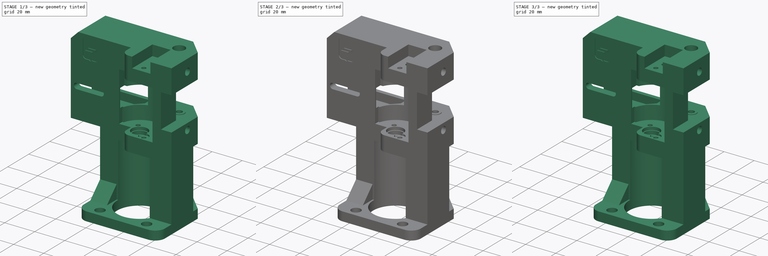
[diagram: build sequence overview — one tinted view per stage of 3, left to right]
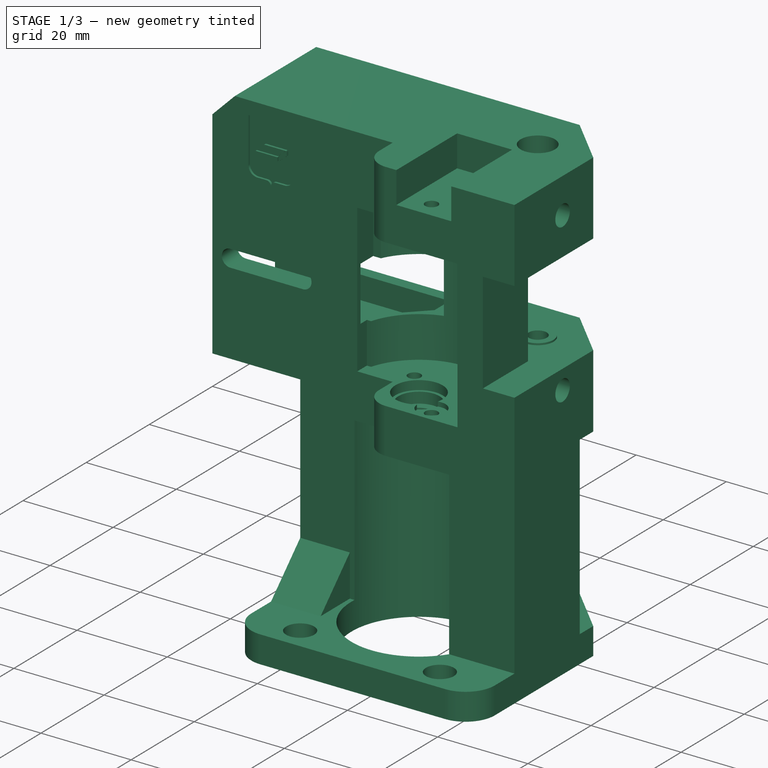
[diagram: stage 1 of 3 — iso view after this stage's code; geometry added in this stage tinted green]
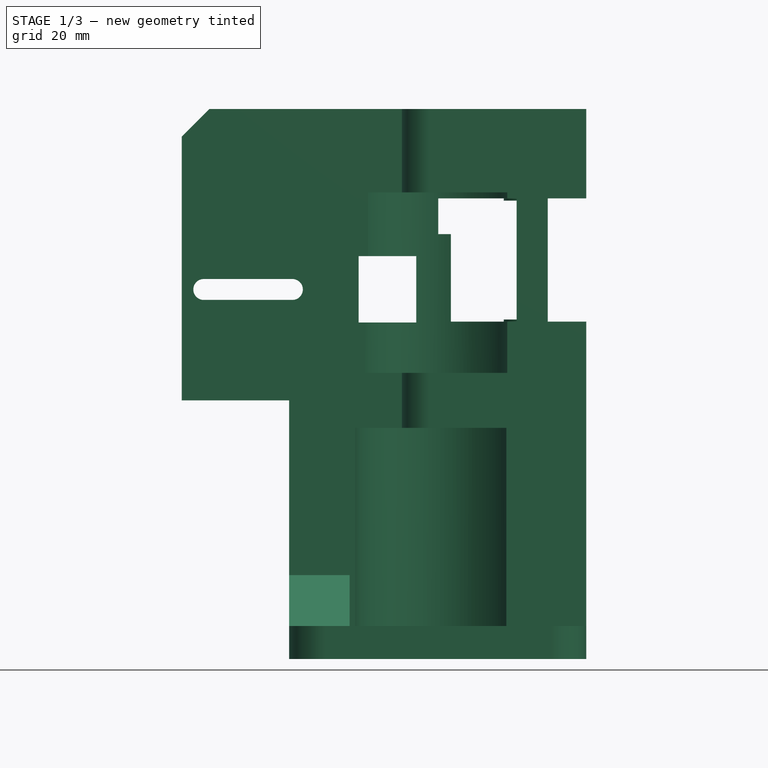
[diagram: stage 1 of 3 — front view after this stage's code; geometry added in this stage tinted green]
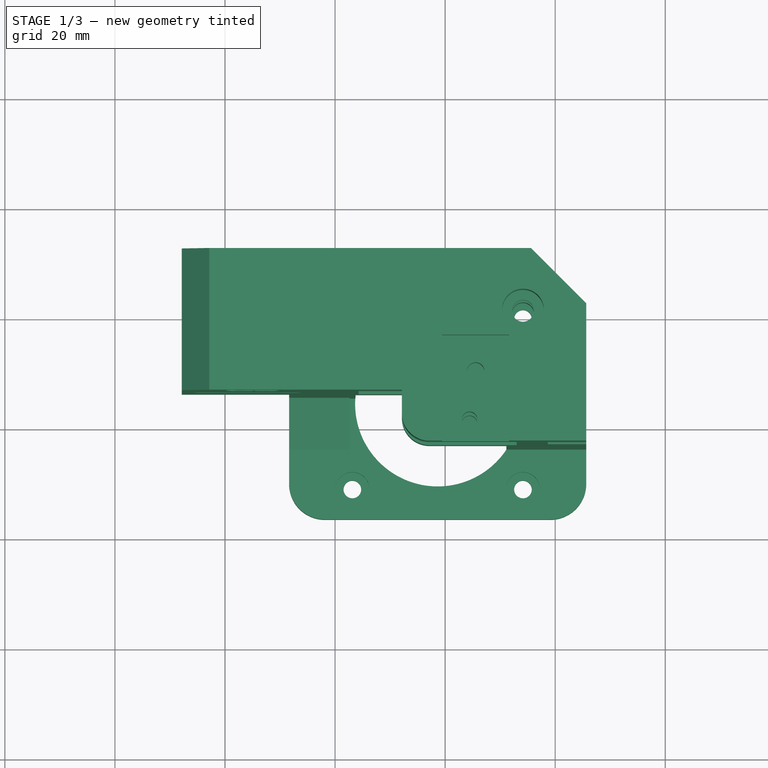
[diagram: stage 1 of 3 — top view after this stage's code; geometry added in this stage tinted green]
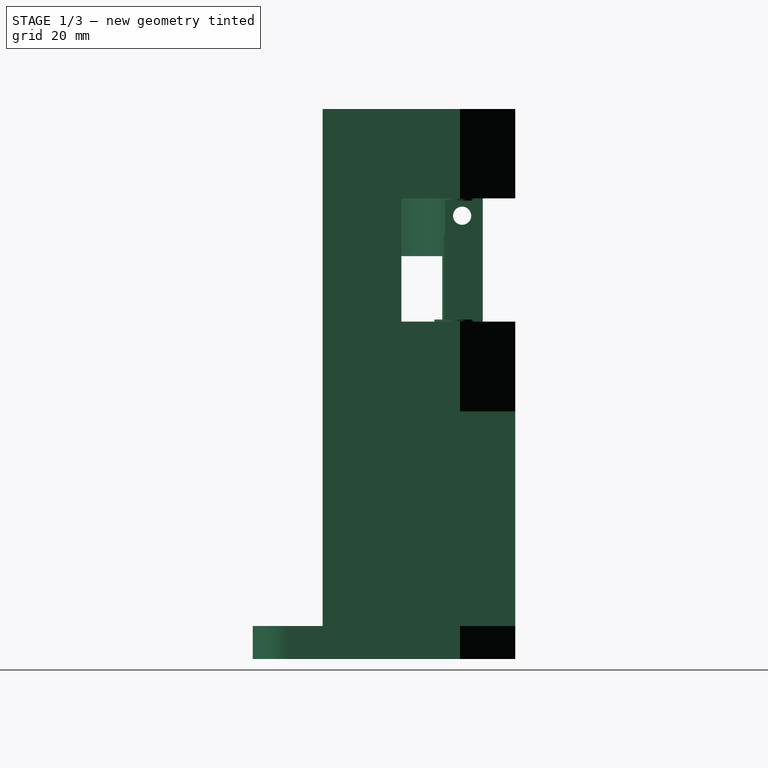
[diagram: stage 1 of 3 — right view after this stage's code; geometry added in this stage tinted green]
FCSTD DOCUMENT  (FreeCAD 1.0R38641 +468 (Git))
Label: k1_motor_mount_couplers_right
License: All rights reserved
LicenseURL: https://en.wikipedia.org/wiki/All_rights_reserved
objects: PartDesign::Pad×3, PartDesign::Pocket×3, Sketcher::SketchObject×2, Part::Feature×1, PartDesign::FeatureBase×1, PartDesign::Line×1, PartDesign::Body×1, App::Part×1
note: 27 computed .brp shape members not serialized (recipe doc carries the construction recipe); baked Part::Feature solids carry a one-line shape summary decoded from their .brp

FEATURE [Part::Feature] Part__Feature  label="step"
  shape: bbox 73.5 x 47.7 x 99.95 mm, 158 faces (baked)
FEATURE [PartDesign::FeatureBase] BaseFeature
  BaseFeature = -> Part__Feature
  Suppressed = false
FEATURE [PartDesign::Line] DatumLine  label="rail_mount"
  AttacherType = Attacher::AttachEngineLine
  AttachmentOffset = pos=(0.22,-2.5,0) rot=(0,0,1;0rad)
  AttachmentSupport = -> [BaseFeature]
  Length = 20
  MapMode = 19
  Placement = pos=(285.756,986.528,40.945) rot=(0,0,1;0rad)
  ResizeMode = 0
FEATURE [PartDesign::Pad] Pad
  BaseFeature = -> BaseFeature
  Direction = (-9.79e-14,5.78e-13,-1)
  Length = 10
  Length2 = 10
  Profile = -> BaseFeature [Face83]
  Refine = true
  Suppressed = false
  Type = 3
  UpToFace = -> BaseFeature [Face24]
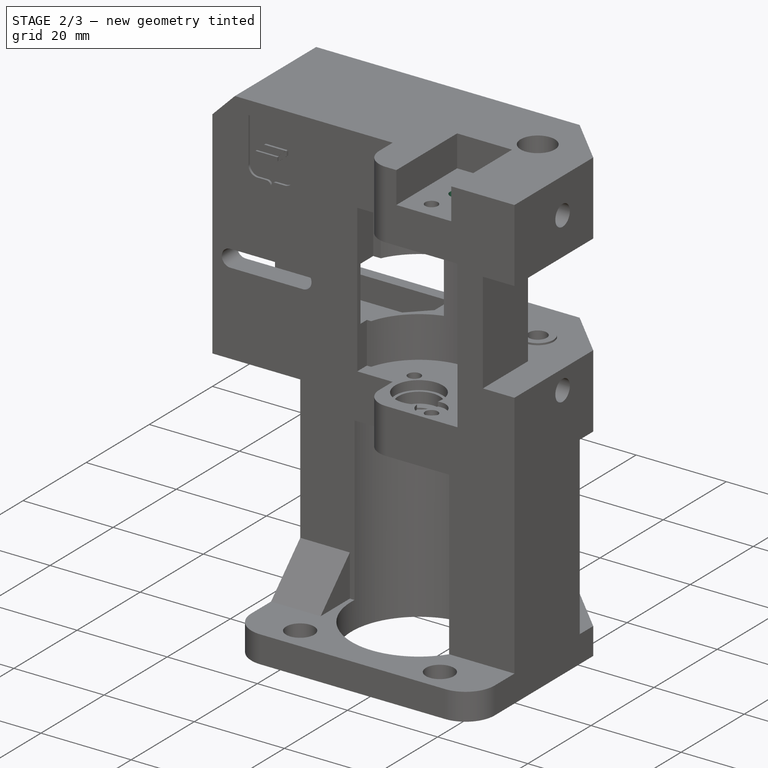
[diagram: stage 2 of 3 — iso view after this stage's code; geometry added in this stage tinted green]
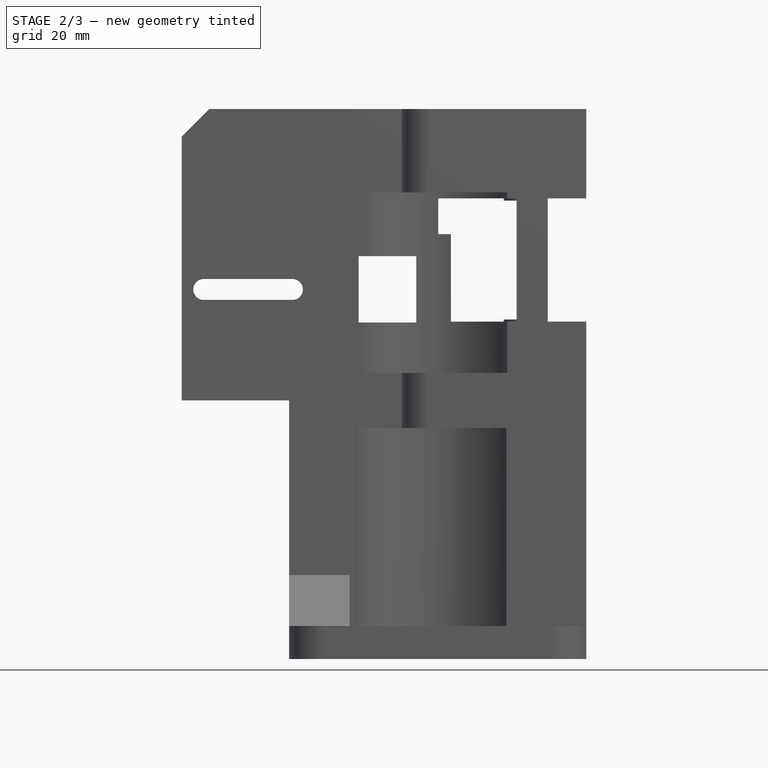
[diagram: stage 2 of 3 — front view after this stage's code; geometry added in this stage tinted green]
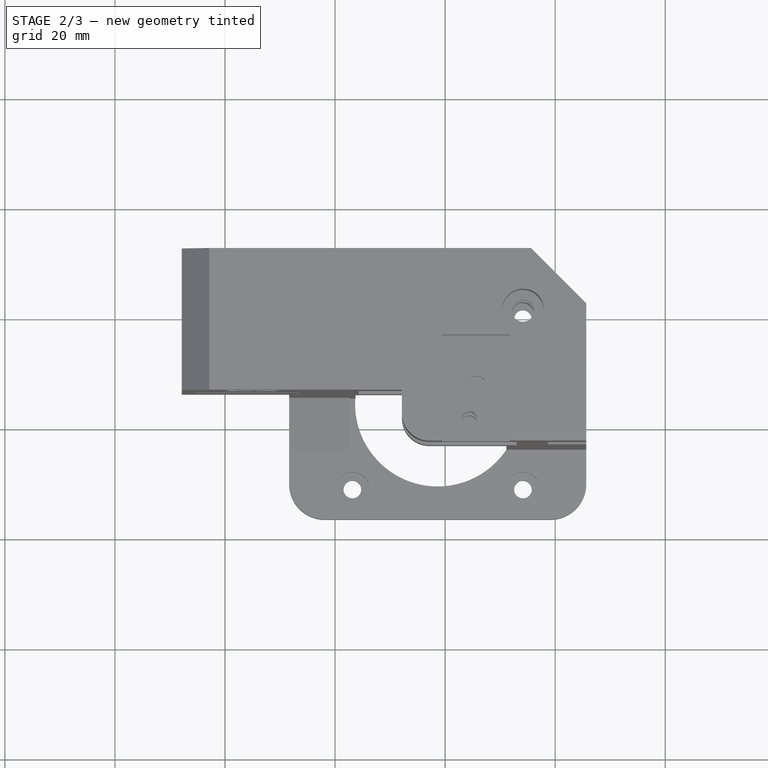
[diagram: stage 2 of 3 — top view after this stage's code; geometry added in this stage tinted green]
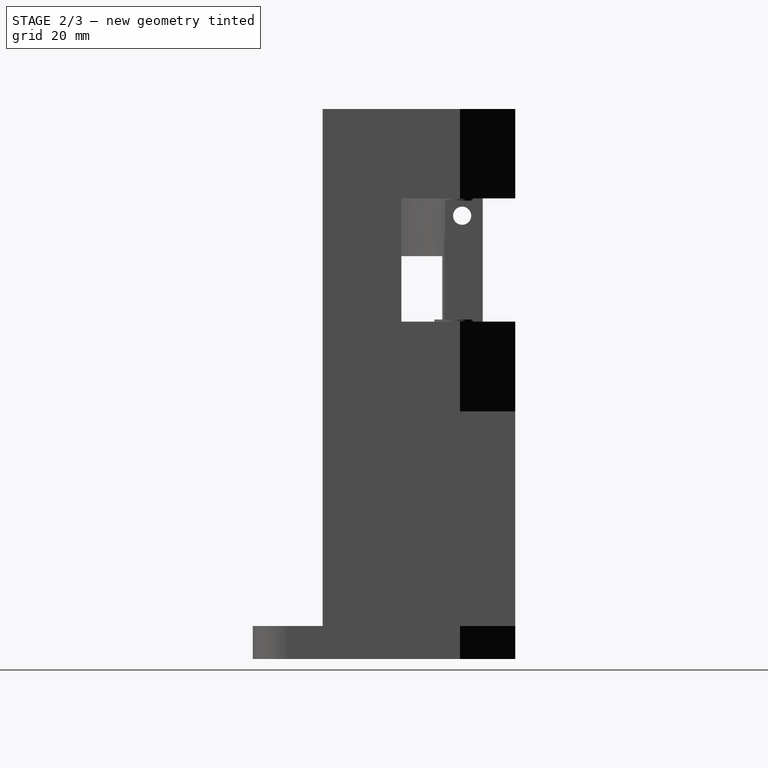
[diagram: stage 2 of 3 — right view after this stage's code; geometry added in this stage tinted green]
FEATURE [PartDesign::Pad] Pad001
  BaseFeature = -> Pad
  Direction = (5.33e-14,-4.564e-13,1)
  Length = 10
  Length2 = 10
  Profile = -> Pad [Edge190]
  Refine = true
  Suppressed = false
  Type = 3
  UpToFace = -> Pad [Face145]
FEATURE [Sketcher::SketchObject] Sketch
  ArcFitTolerance = 1e-06
  AttachmentSupport = -> [Pad001]
  ExternalGeometry = -> [DatumLine]
  FullyConstrained = true
  MakeInternals = false
  MapMode = 5
  Placement = pos=(2.053e-12,-1.82127e-11,40.945) rot=(0,0,1;0rad)
  sketch-geometry (1):
    g0: Circle CenterX=285.756 CenterY=986.528 CenterZ=0 NormalX=0 NormalY=0 NormalZ=1 AngleXU=0 Radius=1.6
  constraints (2):
    c: Coincident(g0,g-3)
    c: Diameter(g0) = 3.2
FEATURE [PartDesign::Pocket] Pocket  label="rail_hole"
  BaseFeature = -> Pad001
  Direction = (-5.01e-14,4.448e-13,-1)
  Length = 10
  Length2 = 5
  Profile = -> Sketch
  ReferenceAxis = -> Sketch [N_Axis]
  Refine = true
  Suppressed = false
  Type = 0
FEATURE [Sketcher::SketchObject] Sketch001
  ArcFitTolerance = 1e-06
  AttachmentSupport = -> [Pocket]
  ExternalGeometry = -> [DatumLine]
  FullyConstrained = true
  MakeInternals = false
  MapMode = 5
  Placement = pos=(-2.41257e-11,-5.0784e-12,32.8) rot=(1,0,0;3.14159rad)
  sketch-geometry (1):
    g0: Circle CenterX=285.756 CenterY=-986.528 CenterZ=0 NormalX=0 NormalY=0 NormalZ=1 AngleXU=0 Radius=1.95
  constraints (2):
    c: Coincident(g0,g-3)
    c: Diameter(g0) = 3.9
FEATURE [PartDesign::Pocket] Pocket001  label="rail_heat_insert"
  BaseFeature = -> Pocket
  Direction = (-7.355e-13,-1.548e-13,1)
  Length = 5.1
  Length2 = 5
  Profile = -> Sketch001
  ReferenceAxis = -> Sketch001 [N_Axis]
  Refine = true
  Suppressed = false
  Type = 0
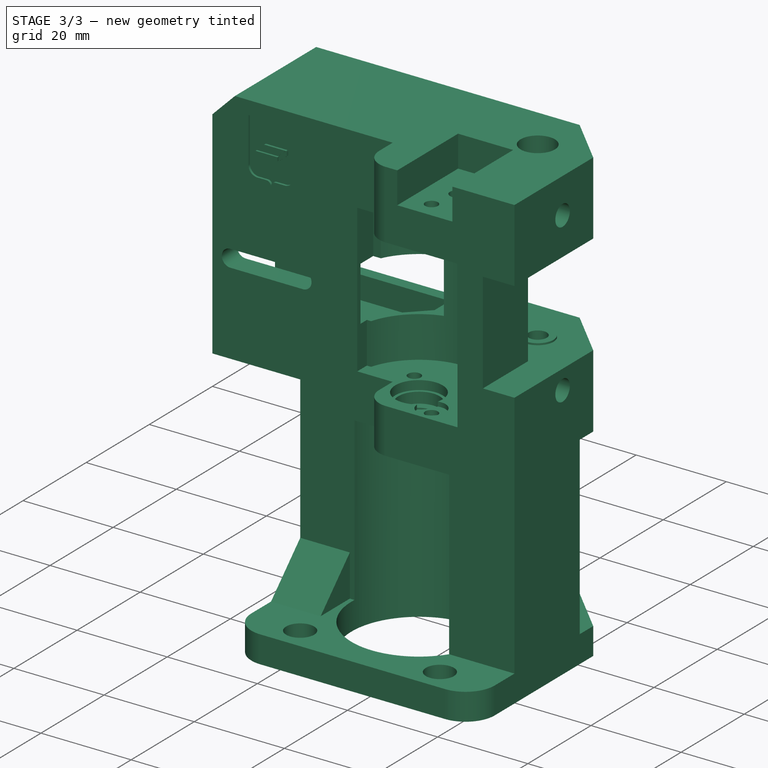
[diagram: stage 3 of 3 — iso view after this stage's code; geometry added in this stage tinted green]
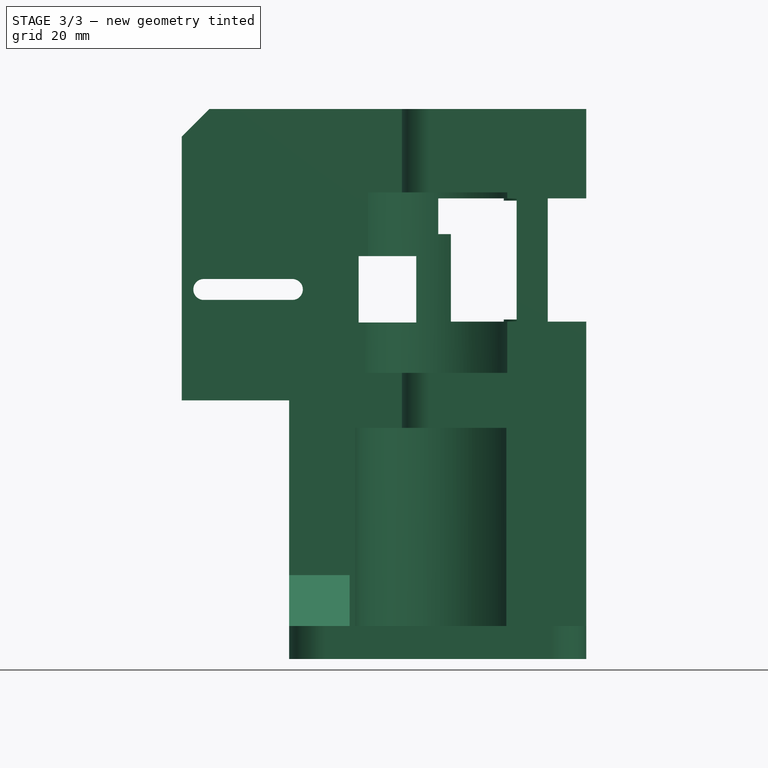
[diagram: stage 3 of 3 — front view after this stage's code; geometry added in this stage tinted green]
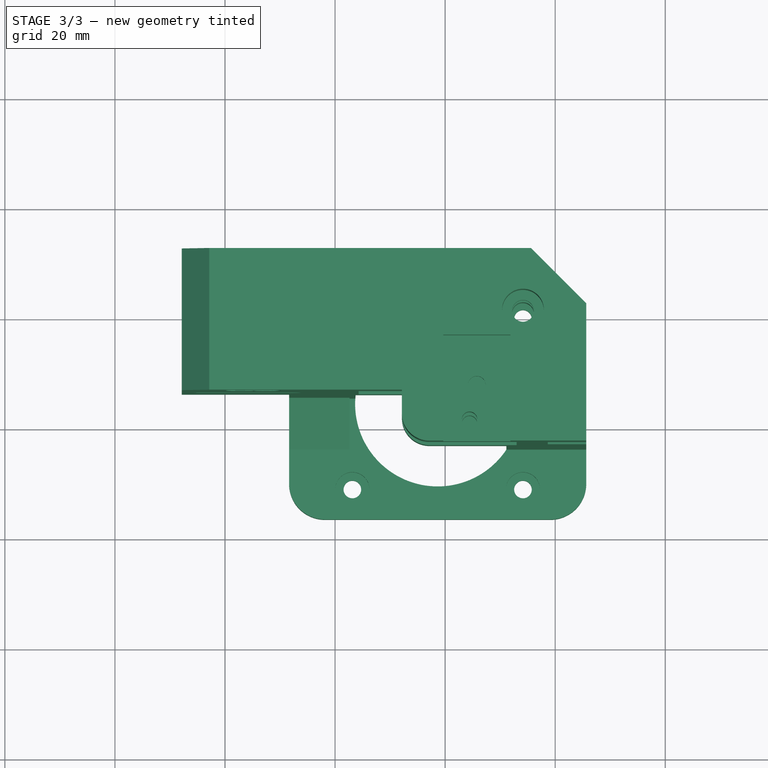
[diagram: stage 3 of 3 — top view after this stage's code; geometry added in this stage tinted green]
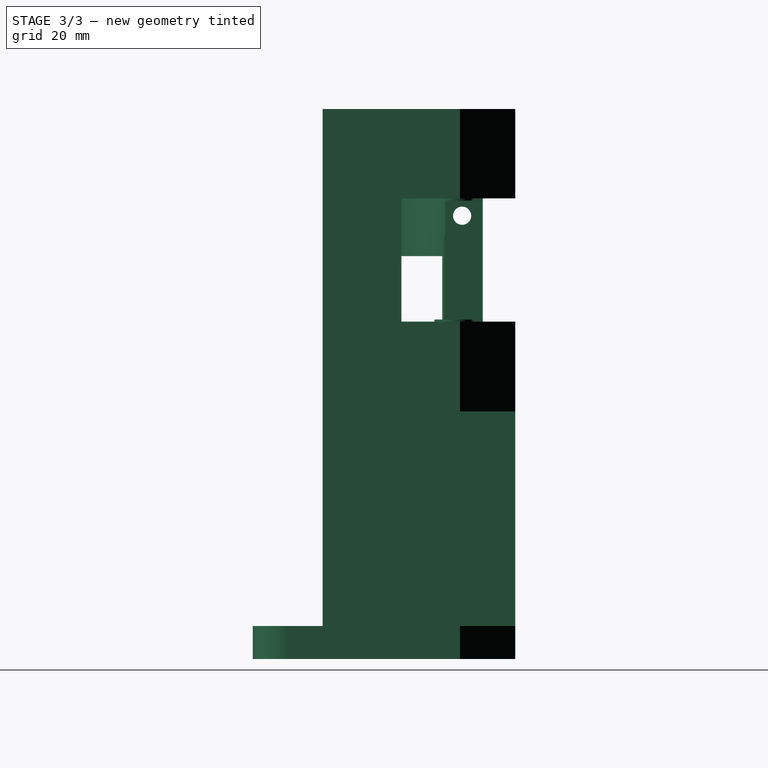
[diagram: stage 3 of 3 — right view after this stage's code; geometry added in this stage tinted green]
FEATURE [PartDesign::Pocket] Pocket002  label="move_right_wall"
  BaseFeature = -> Pocket001
  Direction = (1,-2.6e-15,1e-16)
  Length = 0.23
  Length2 = 5
  Profile = -> Pocket001 [Face11]
  Refine = true
  Suppressed = false
  Type = 0
FEATURE [PartDesign::Pad] Pad002  label="move_left_wall"
  BaseFeature = -> Pocket002
  Direction = (1,-2.6e-15,1e-16)
  Length = 0.21
  Length2 = 10
  Profile = -> Pocket002 [Face6]
  Refine = true
  Suppressed = false
  Type = 0
FEATURE [PartDesign::Body] Body  label="k1_motor_mount_couplers_right"
  AllowCompound = false
  BaseFeature = -> Part__Feature
  Group = -> [BaseFeature,DatumLine,Pad,Pad001,Sketch,Pocket,Sketch001,Pocket001,Pocket002,Pad002]
  Origin = -> Origin001
  Tip = -> Pad002
FEATURE [App::Part] Part  label="k1_motor_mount_couplers_right_part"
  Group = -> [Part__Feature,Body]
  Origin = -> Origin
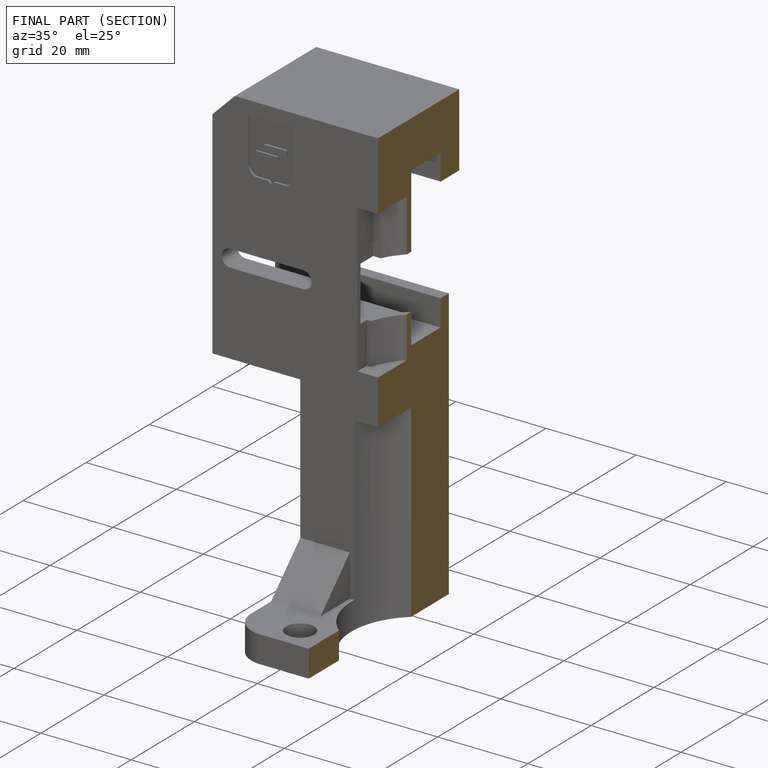
[diagram: finished part — half-section view (interior)]
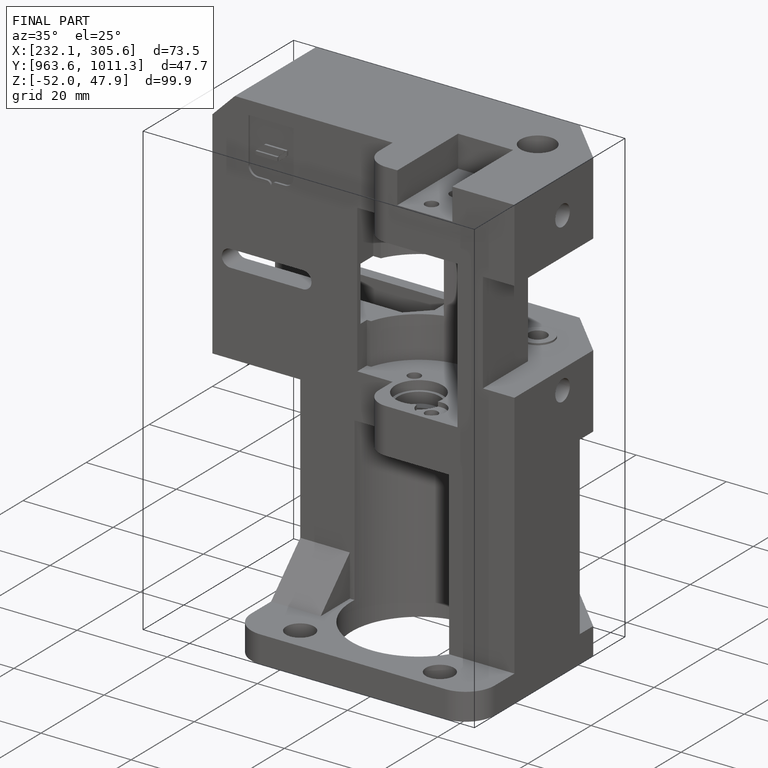
[diagram: finished part — iso view with bounding-box wireframe]
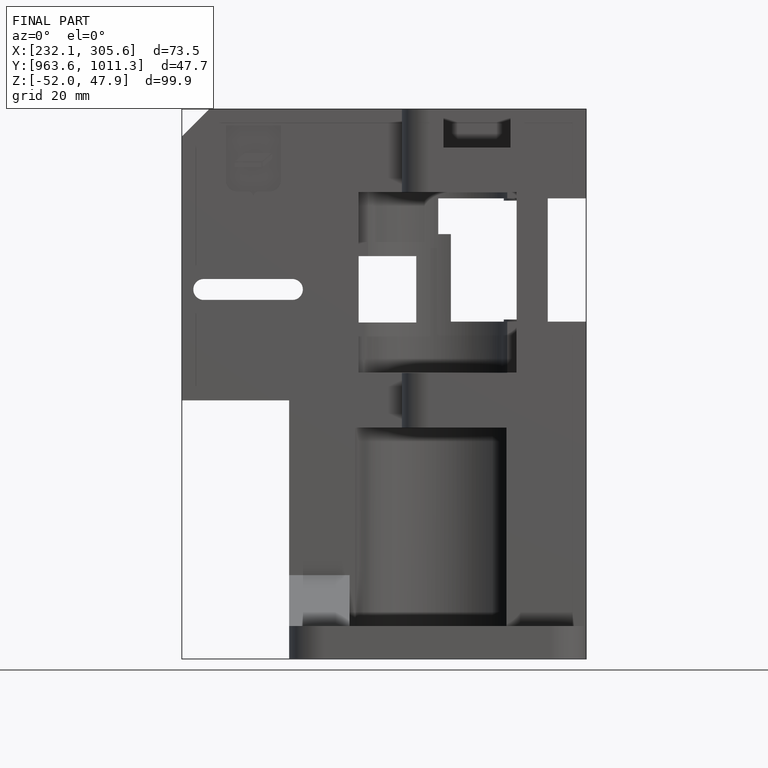
[diagram: finished part — front view with bounding-box wireframe]
